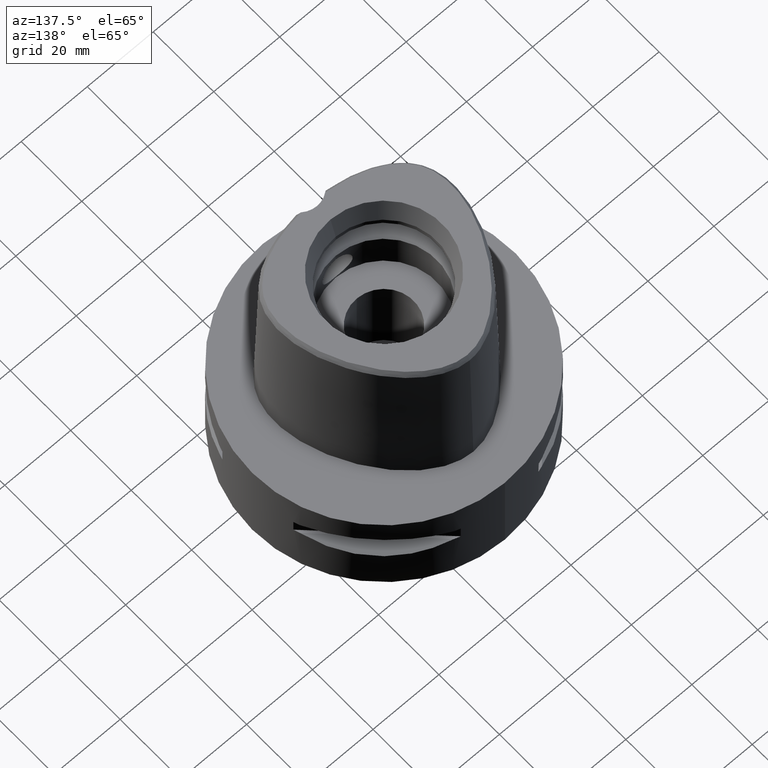
[diagram: clean part render]
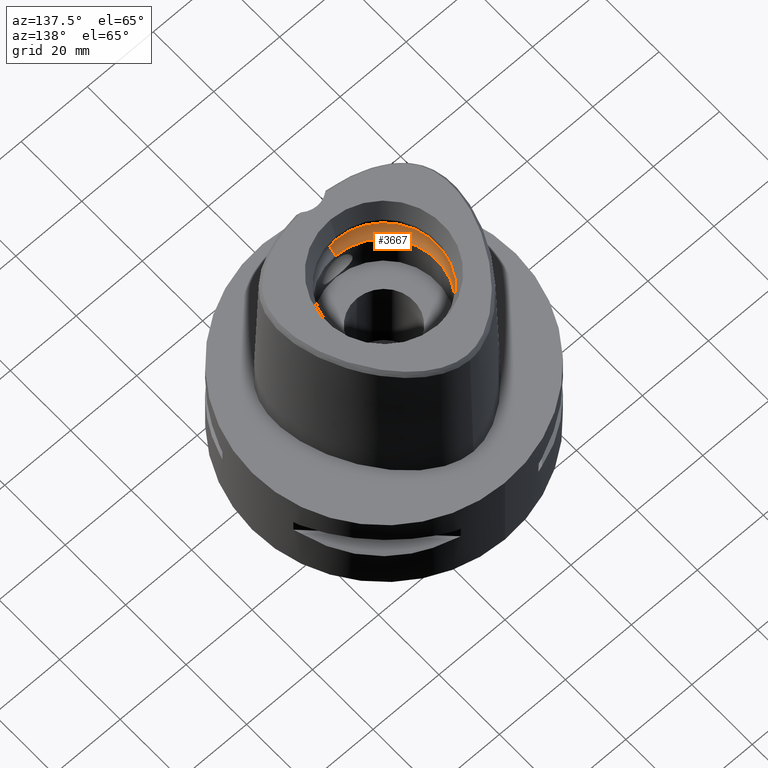
[diagram: same view with one face highlighted and labeled with its STEP entity id]
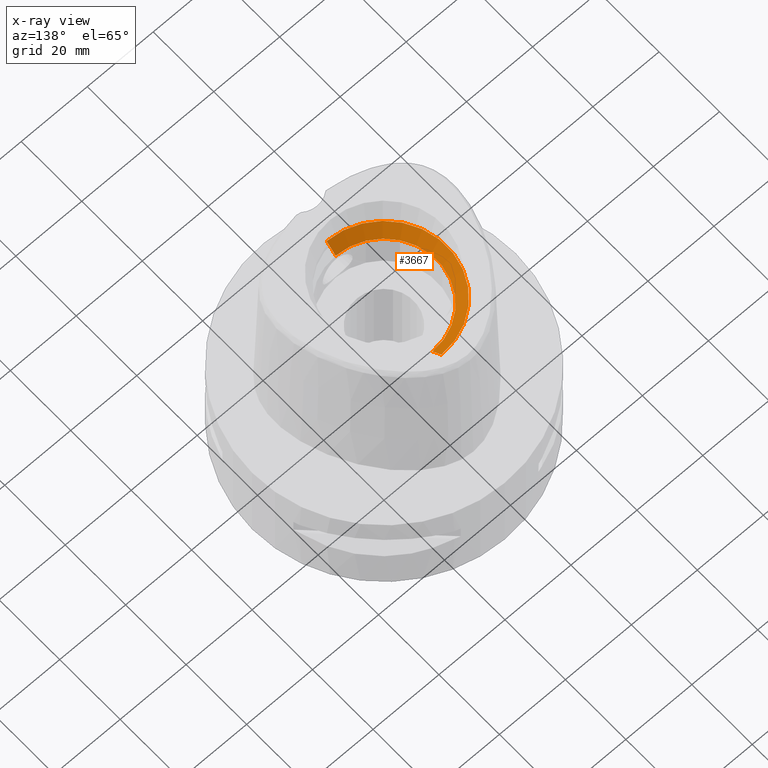
[diagram: x-ray of the same camera — body ghosted, the highlighted face saturated]
A machine part, auxiliary view. The second image highlights one B-rep face of the part: STEP entity #3667.
The next image is the same camera in x-ray: the body ghosted, the highlighted face saturated — about 0% of this face is hidden behind the body in this view.
In plain terms, the highlighted conical surface has half-angle 45 deg.
Its self-contained STEP definition (entity closure, byte-faithful):
#1348=DIRECTION('',(0.E0,-7.071067811865E-1,7.071067811865E-1));
#1349=VECTOR('',#1348,4.242640687119E0);
#1350=CARTESIAN_POINT('',(0.E0,-1.6E1,3.15E1));
#1351=LINE('',#1350,#1349);
#1355=CARTESIAN_POINT('',(0.E0,0.E0,3.45E1));
#1356=DIRECTION('',(0.E0,0.E0,-1.E0));
#1357=DIRECTION('',(0.E0,-1.E0,0.E0));
#1358=AXIS2_PLACEMENT_3D('',#1355,#1356,#1357);
#1363=CARTESIAN_POINT('',(0.E0,0.E0,3.15E1));
#1364=DIRECTION('',(0.E0,0.E0,1.E0));
#1365=DIRECTION('',(0.E0,1.E0,0.E0));
#1366=AXIS2_PLACEMENT_3D('',#1363,#1364,#1365);
#1379=DIRECTION('',(0.E0,7.071067811865E-1,7.071067811865E-1));
#1380=VECTOR('',#1379,4.242640687119E0);
#1381=CARTESIAN_POINT('',(0.E0,1.6E1,3.15E1));
#1382=LINE('',#1381,#1380);
#1972=CARTESIAN_POINT('',(0.E0,1.6E1,3.15E1));
#1973=VERTEX_POINT('',#1972);
#1974=CARTESIAN_POINT('',(0.E0,-1.6E1,3.15E1));
#1975=VERTEX_POINT('',#1974);
#1983=CARTESIAN_POINT('',(0.E0,-1.9E1,3.45E1));
#1984=VERTEX_POINT('',#1983);
#1985=CARTESIAN_POINT('',(0.E0,1.9E1,3.45E1));
#1986=VERTEX_POINT('',#1985);
#3653=CARTESIAN_POINT('',(0.E0,0.E0,3.3E1));
#3654=DIRECTION('',(0.E0,0.E0,1.E0));
#3655=DIRECTION('',(0.E0,1.E0,0.E0));
#3656=AXIS2_PLACEMENT_3D('',#3653,#3654,#3655);
#3657=CONICAL_SURFACE('',#3656,1.75E1,4.5E1);
#3659=ORIENTED_EDGE('',*,*,#3658,.T.);
#3661=ORIENTED_EDGE('',*,*,#3660,.T.);
#3663=ORIENTED_EDGE('',*,*,#3662,.F.);
#3664=ORIENTED_EDGE('',*,*,#3484,.T.);
#3665=EDGE_LOOP('',(#3659,#3661,#3663,#3664));
#3666=FACE_OUTER_BOUND('',#3665,.F.);
#1359=CIRCLE('',#1358,1.9E1);
#1367=CIRCLE('',#1366,1.6E1);
#3484=EDGE_CURVE('',#1973,#1975,#1367,.T.);
#3658=EDGE_CURVE('',#1975,#1984,#1351,.T.);
#3660=EDGE_CURVE('',#1984,#1986,#1359,.T.);
#3662=EDGE_CURVE('',#1973,#1986,#1382,.T.);
#3667=ADVANCED_FACE('',(#3666),#3657,.F.);